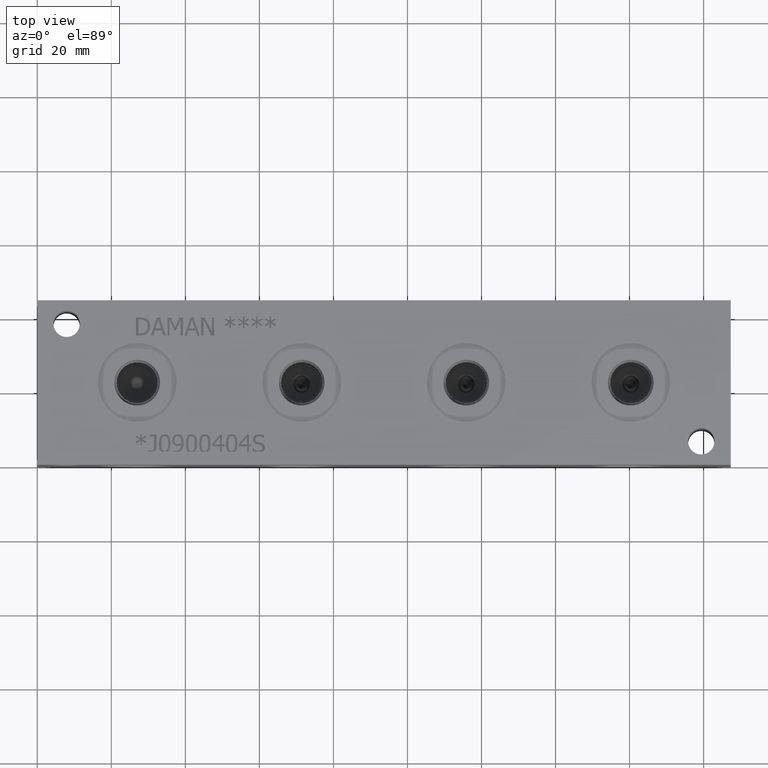
[diagram: clean part render]
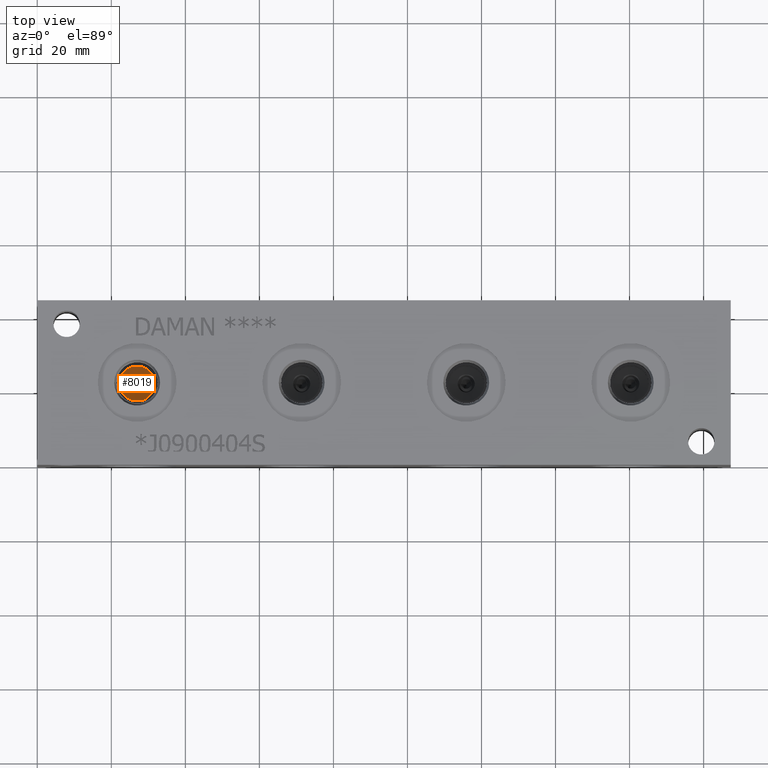
[diagram: same view with one face highlighted and labeled with its STEP entity id]
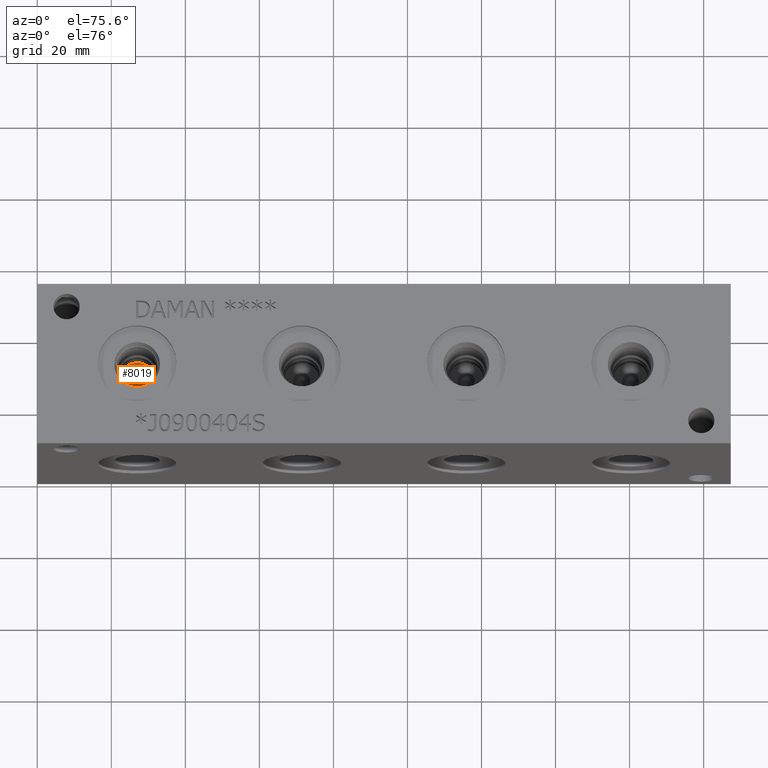
[diagram: same view with one face highlighted and labeled with its STEP entity id]
A machine part, top view. The second image highlights one B-rep face of the part: STEP entity #8019.
A second angle (auxiliary view) of the same face is appended — the face is thin or edge-on in the first view.
In plain terms, the highlighted conical surface has half-angle 60 deg.
Its self-contained STEP definition (entity closure, byte-faithful):
#48=CONICAL_SURFACE('',#8504,2.38125,1.0471975511966);
#164=CIRCLE('',#8313,4.7625);
#165=CIRCLE('',#8314,4.7625);
#534=B_SPLINE_CURVE_WITH_KNOTS('',3,(#13300,#13301,#13302,#13303),
 .UNSPECIFIED.,.F.,.F.,(4,4),(1.73771701906768,1.73942602576835),
 .UNSPECIFIED.);
#535=B_SPLINE_CURVE_WITH_KNOTS('',3,(#13307,#13308,#13309,#13310),
 .UNSPECIFIED.,.F.,.F.,(4,4),(1.98424166650699,1.98595067320766),
 .UNSPECIFIED.);
#536=B_SPLINE_CURVE_WITH_KNOTS('',3,(#13313,#13314,#13315,#13316,#13317,
#13318),.UNSPECIFIED.,.F.,.F.,(4,2,4),(2.2169893345185,2.35840142482533,
2.49981351513216),.UNSPECIFIED.);
#1026=FACE_OUTER_BOUND('',#1489,.T.);
#1489=EDGE_LOOP('',(#6968,#6969,#6970,#6971,#6972,#6973,#6974));
#2240=LINE('',#13741,#2979);
#2979=VECTOR('',#10171,2.38125);
#3581=VERTEX_POINT('',#13297);
#3582=VERTEX_POINT('',#13299);
#3583=VERTEX_POINT('',#13304);
#3584=VERTEX_POINT('',#13306);
#3599=VERTEX_POINT('',#13372);
#3714=VERTEX_POINT('',#13740);
#4604=EDGE_CURVE('',#3581,#3582,#534,.T.);
#4606=EDGE_CURVE('',#3583,#3584,#535,.T.);
#4608=EDGE_CURVE('',#3581,#3584,#536,.T.);
#4633=EDGE_CURVE('',#3583,#3599,#164,.T.);
#4634=EDGE_CURVE('',#3599,#3582,#165,.T.);
#4810=EDGE_CURVE('',#3599,#3714,#2240,.T.);
#6968=ORIENTED_EDGE('',*,*,#4606,.F.);
#6969=ORIENTED_EDGE('',*,*,#4633,.T.);
#6970=ORIENTED_EDGE('',*,*,#4810,.T.);
#6971=ORIENTED_EDGE('',*,*,#4810,.F.);
#6972=ORIENTED_EDGE('',*,*,#4634,.T.);
#6973=ORIENTED_EDGE('',*,*,#4604,.F.);
#6974=ORIENTED_EDGE('',*,*,#4608,.T.);
#8019=ADVANCED_FACE('',(#1026),#48,.F.);
#8313=AXIS2_PLACEMENT_3D('',#13374,#9727,#9728);
#8314=AXIS2_PLACEMENT_3D('',#13375,#9729,#9730);
#8504=AXIS2_PLACEMENT_3D('',#13739,#10169,#10170);
#9727=DIRECTION('center_axis',(0.,0.,1.));
#9728=DIRECTION('ref_axis',(1.,0.,0.));
#9729=DIRECTION('center_axis',(0.,0.,1.));
#9730=DIRECTION('ref_axis',(1.,0.,0.));
#10169=DIRECTION('center_axis',(0.,0.,1.));
#10170=DIRECTION('ref_axis',(1.,0.,0.));
#10171=DIRECTION('',(0.866025403784439,1.06057523872491E-16,-0.5));
#13297=CARTESIAN_POINT('',(25.7782585654513,17.62183,26.834739129865));
#13299=CARTESIAN_POINT('',(25.792491063258,17.61159,26.83841));
#13300=CARTESIAN_POINT('Ctrl Pts',(25.7782585654511,17.6218299999997,26.8347391298649));
#13301=CARTESIAN_POINT('Ctrl Pts',(25.7829857486474,17.6184053243635,26.8359661560379));
#13302=CARTESIAN_POINT('Ctrl Pts',(25.7877310744087,17.6149910381517,26.8371901263371));
#13303=CARTESIAN_POINT('Ctrl Pts',(25.792491063258,17.61159,26.83841));
#13304=CARTESIAN_POINT('',(28.157108936742,17.61159,26.83841));
#13306=CARTESIAN_POINT('',(28.1713414345487,17.62183,26.834739129865));
#13307=CARTESIAN_POINT('Ctrl Pts',(28.157108936742,17.61159,26.83841));
#13308=CARTESIAN_POINT('Ctrl Pts',(28.1618689503714,17.6149910558572,26.8371901199865));
#13309=CARTESIAN_POINT('Ctrl Pts',(28.1666142173594,17.6184052997367,26.8359661648615));
#13310=CARTESIAN_POINT('Ctrl Pts',(28.1713414345489,17.6218299999998,26.8347391298649));
#13313=CARTESIAN_POINT('Ctrl Pts',(25.7782585654512,17.6218300000001,26.8347391298647));
#13314=CARTESIAN_POINT('Ctrl Pts',(26.1269236877602,17.7365201867914,26.7200092762967));
#13315=CARTESIAN_POINT('Ctrl Pts',(26.5034263656439,17.8306107274502,26.625881172415));
#13316=CARTESIAN_POINT('Ctrl Pts',(27.4461736343561,17.8306107274502,26.625881172415));
#13317=CARTESIAN_POINT('Ctrl Pts',(27.8226763122399,17.7365201867914,26.7200092762968));
#13318=CARTESIAN_POINT('Ctrl Pts',(28.1713414345488,17.6218300000001,26.8347391298647));
#13372=CARTESIAN_POINT('',(22.2123,22.225,26.83841));
#13374=CARTESIAN_POINT('Origin',(26.9748,22.225,26.83841));
#13375=CARTESIAN_POINT('Origin',(26.9748,22.225,26.83841));
#13739=CARTESIAN_POINT('Origin',(26.9748,22.225,25.4635946714922));
#13740=CARTESIAN_POINT('',(26.9748,22.225,24.0887793429844));
#13741=CARTESIAN_POINT('',(24.59355,22.225,25.4635946714922));